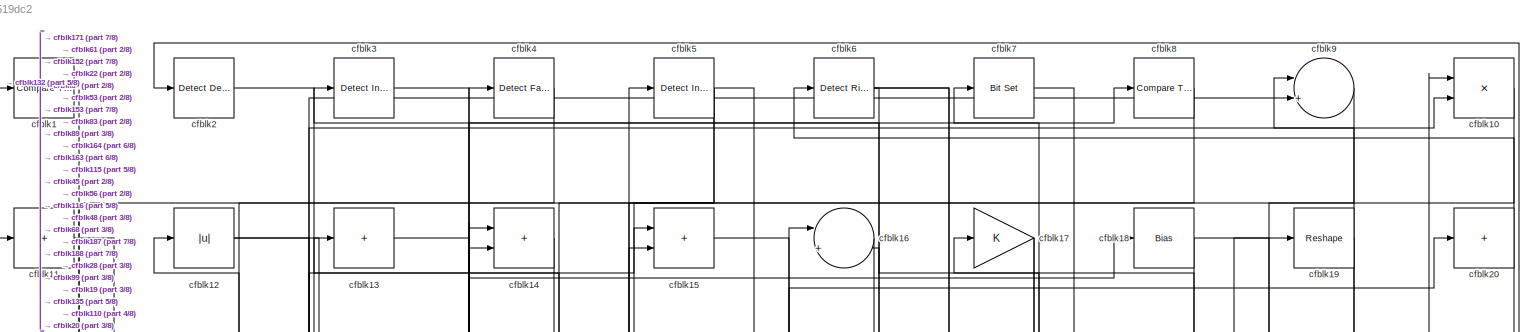
[diagram: root canvas - part 1/8, full width, top band]
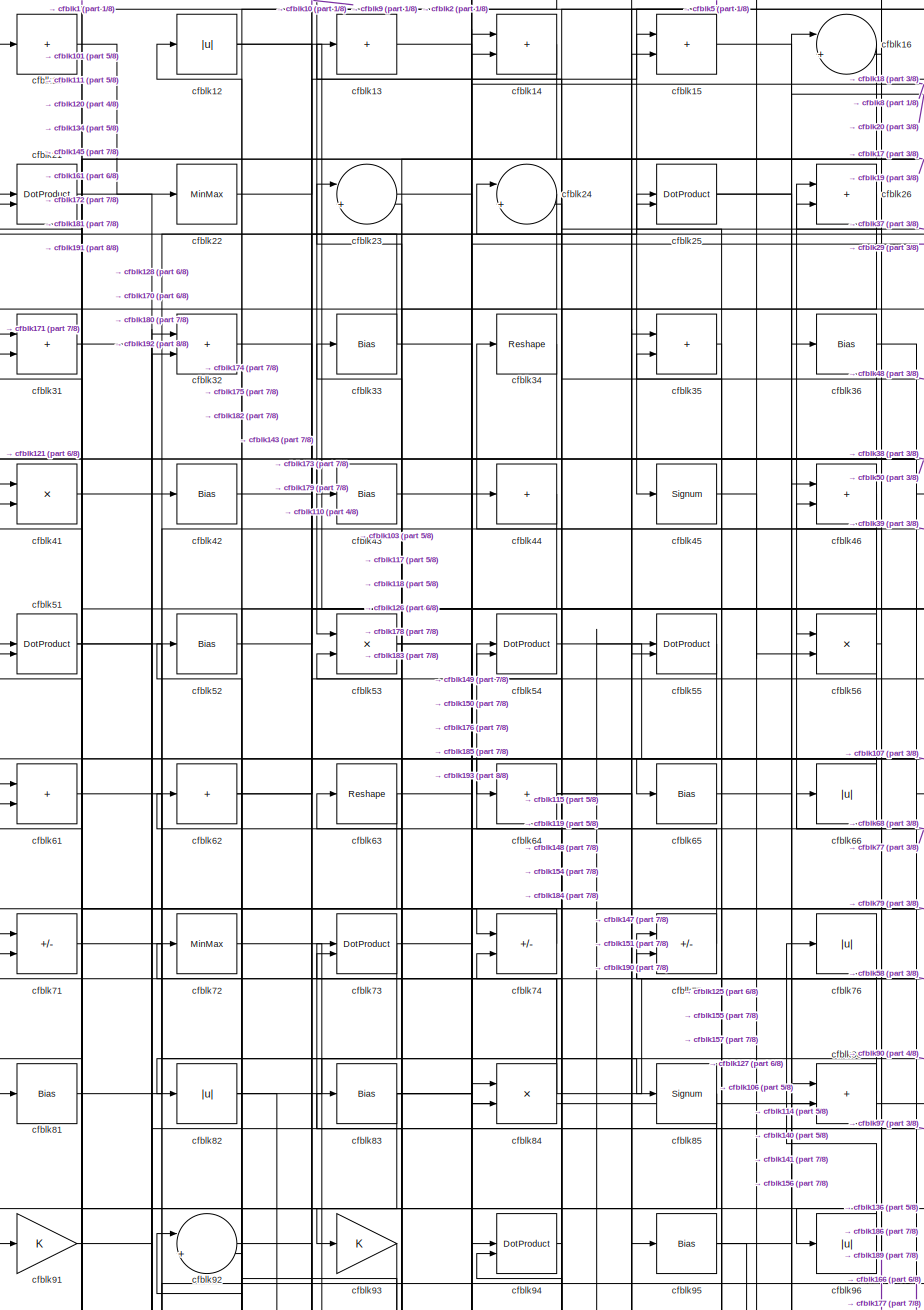
[diagram: root canvas - part 2/8, top left region]
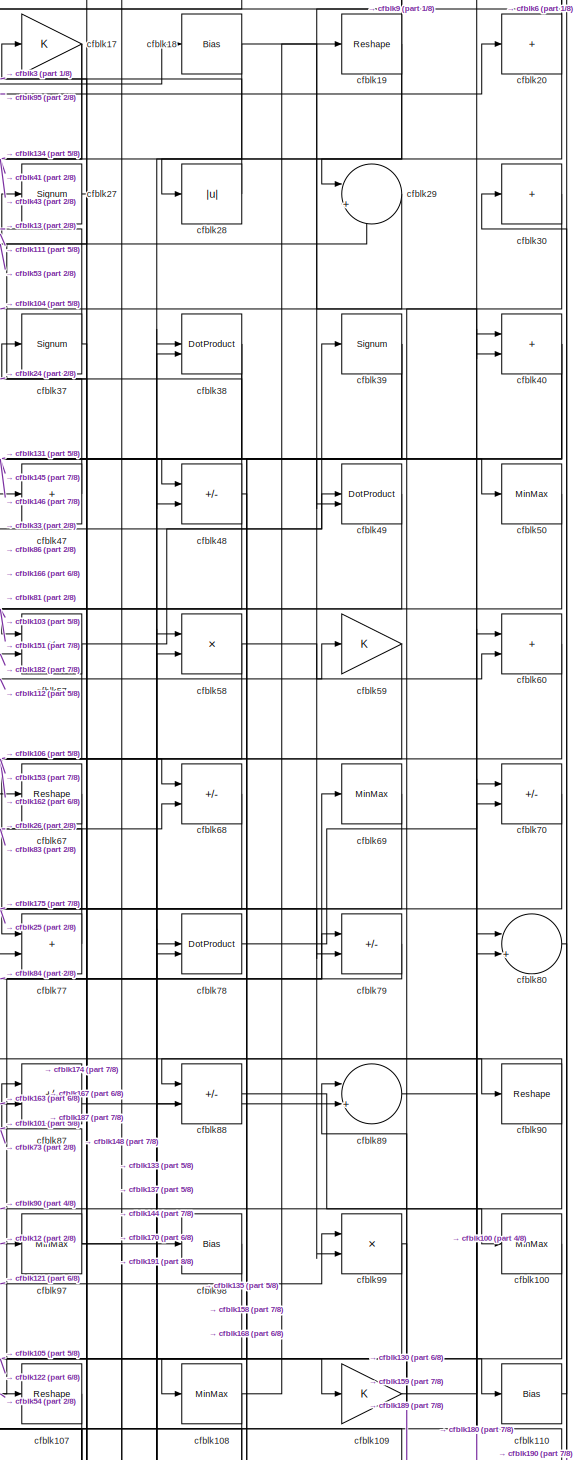
[diagram: root canvas - part 3/8, top right region]
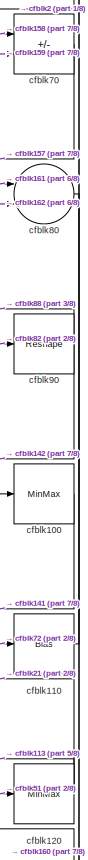
[diagram: root canvas - part 4/8, middle right region]
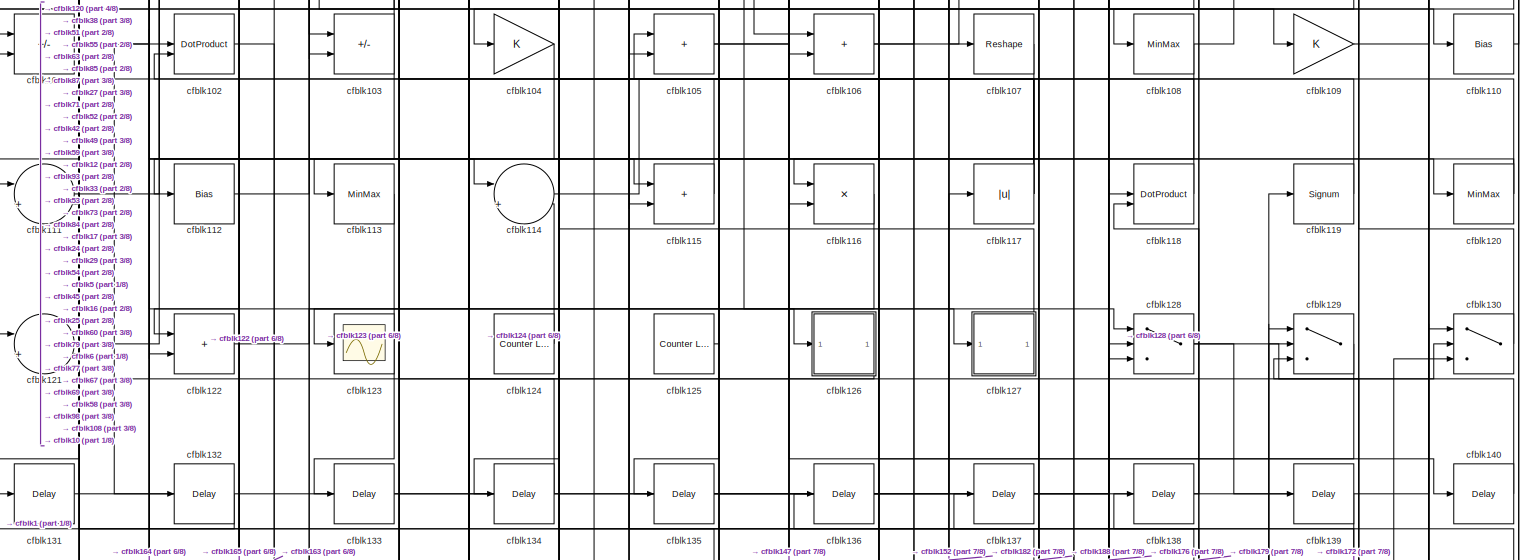
[diagram: root canvas - part 5/8, full width, middle band]
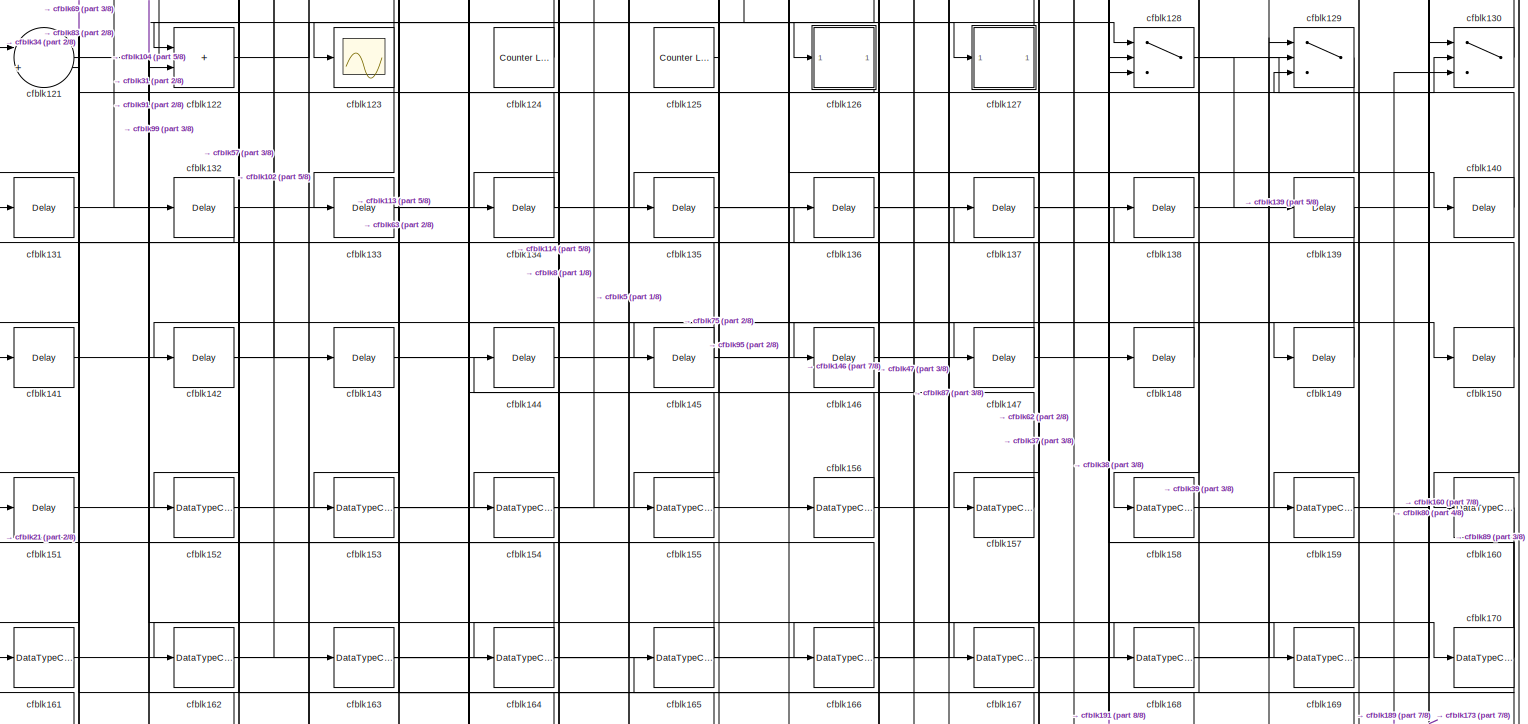
[diagram: root canvas - part 6/8, full width, bottom band]
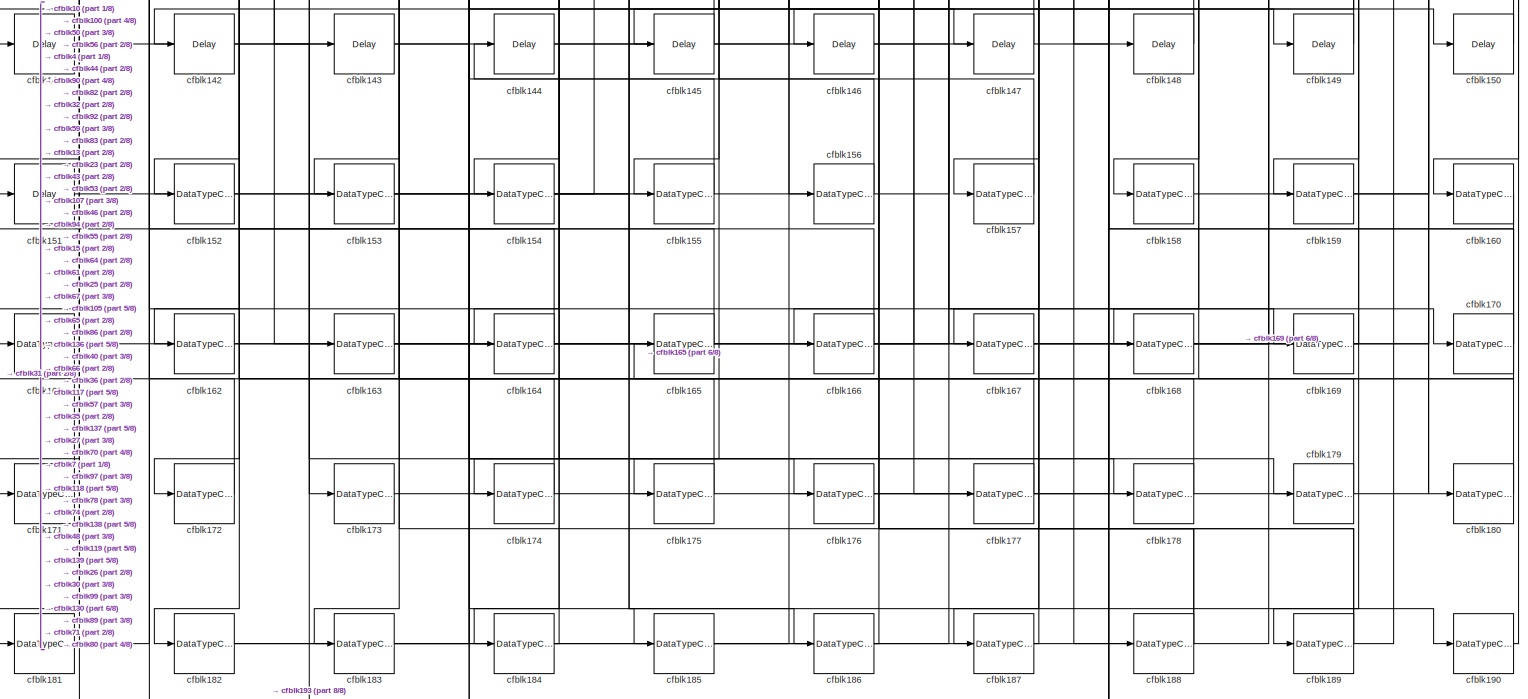
[diagram: root canvas - part 7/8, full width, bottom band]
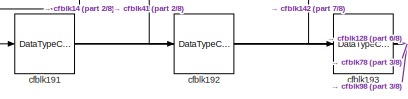
[diagram: root canvas - part 8/8, bottom left region]
MODEL slx_d0ee28519dc2
KIND model
CONFIG AbsTol = auto
CONFIG EnableMultiTasking = off
CONFIG FixedStep = auto
CONFIG MaxStep = auto
CONFIG MinStep = auto
CONFIG RelTol = 1e-3
CONFIG SampleTimeConstraint = Unconstrained
CONFIG SolverName = VariableStepAuto
CONFIG StartTime = 0.0
CONFIG StopTime = 10.0
BLOCK [Reference] cfblk1  REF=hdlsllib/Logic and Bit
Operations/Compare
To Zero
  SourceBlock = hdlsllib/Logic and Bit\nOperations/Compare\nTo Zero
  SourceType = Compare To Zero
BLOCK [Product] cfblk10
  Inputs = */
  RndMeth = Zero
  SaturateOnIntegerOverflow = on
BLOCK [MinMax] cfblk100
BLOCK [Sum] cfblk101
  IconShape = rectangular
  Inputs = +-
BLOCK [DotProduct] cfblk102
  OutDataTypeStr = Inherit: Inherit via internal rule
BLOCK [Sum] cfblk103
  IconShape = rectangular
  Inputs = +-
BLOCK [Gain] cfblk104
BLOCK [Sum] cfblk105
  IconShape = rectangular
BLOCK [Sum] cfblk106
  IconShape = rectangular
BLOCK [Reshape] cfblk107
BLOCK [MinMax] cfblk108
BLOCK [Gain] cfblk109
BLOCK [Sum] cfblk11
  IconShape = rectangular
  Inputs = +
BLOCK [Bias] cfblk110
  Bias = 0.0
  SaturateOnIntegerOverflow = off
BLOCK [Sum] cfblk111
  Inputs = |++
BLOCK [Bias] cfblk112
  Bias = 0.0
  SaturateOnIntegerOverflow = off
BLOCK [MinMax] cfblk113
BLOCK [Sum] cfblk114
  Inputs = |++
BLOCK [Sum] cfblk115
  IconShape = rectangular
BLOCK [Product] cfblk116
  Inputs = */
  RndMeth = Zero
  SaturateOnIntegerOverflow = on
BLOCK [Abs] cfblk117
  SaturateOnIntegerOverflow = off
BLOCK [DotProduct] cfblk118
  OutDataTypeStr = Inherit: Inherit via internal rule
BLOCK [Signum] cfblk119
BLOCK [Abs] cfblk12
  SaturateOnIntegerOverflow = off
BLOCK [MinMax] cfblk120
BLOCK [Sum] cfblk121
  Inputs = |++
BLOCK [Sum] cfblk122
  IconShape = rectangular
BLOCK [Scope] cfblk123
  Floating = off
  NumInputPorts = 1
  ScopeSpecificationString = Simulink.scopes.TimeScopeBlockCfg('CurrentConfiguration', extmgr.ConfigurationSet(extmgr.Configuration('Core','General UI',true),extmgr.Configuration('Core','Source UI',true),extmgr.Configuration('Sources','WiredSimulink',true,'DataLoggingVariableName','ScopeData2','DataLoggingSaveFormat','Array','DataLoggingLimitDataPoints',true,'DataLoggingDecimation','1'),extmgr.Configuration('Visuals','Time Do...<+868ch>
BLOCK [Reference] cfblk124  REF=hdlsllib/Sources/Counter
Limited
  SourceBlock = hdlsllib/Sources/Counter\nLimited
  SourceType = Counter Limited
BLOCK [Reference] cfblk125  REF=hdlsllib/Sources/Counter
Limited
  SourceBlock = hdlsllib/Sources/Counter\nLimited
  SourceType = Counter Limited
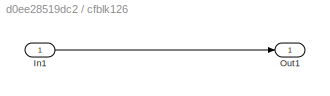
BLOCK [SubSystem] cfblk126
  LibrarySourceBlock = hdlsllib/Ports &\nSubsystems/Subsystem
BLOCK [Inport] cfblk126/In1
BLOCK [Outport] cfblk126/Out1
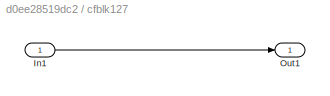
BLOCK [SubSystem] cfblk127
  LibrarySourceBlock = hdlsllib/Ports &\nSubsystems/Subsystem
BLOCK [Inport] cfblk127/In1
BLOCK [Outport] cfblk127/Out1
BLOCK [Switch] cfblk128
  InputSameDT = off
  SaturateOnIntegerOverflow = off
BLOCK [Switch] cfblk129
  InputSameDT = off
  SaturateOnIntegerOverflow = off
BLOCK [Sum] cfblk13
  IconShape = rectangular
  Inputs = +
BLOCK [Switch] cfblk130
  InputSameDT = off
  SaturateOnIntegerOverflow = off
BLOCK [Delay] cfblk131
  InputPortMap = u0
  SampleTime = 1
BLOCK [Delay] cfblk132
  InputPortMap = u0
  SampleTime = 1
BLOCK [Delay] cfblk133
  InputPortMap = u0
  SampleTime = 1
BLOCK [Delay] cfblk134
  InputPortMap = u0
  SampleTime = 1
BLOCK [Delay] cfblk135
  InputPortMap = u0
  SampleTime = 1
BLOCK [Delay] cfblk136
  InputPortMap = u0
  SampleTime = 1
BLOCK [Delay] cfblk137
  InputPortMap = u0
  SampleTime = 1
BLOCK [Delay] cfblk138
  InputPortMap = u0
  SampleTime = 1
BLOCK [Delay] cfblk139
  InputPortMap = u0
  SampleTime = 1
BLOCK [Sum] cfblk14
  IconShape = rectangular
BLOCK [Delay] cfblk140
  InputPortMap = u0
  SampleTime = 1
BLOCK [Delay] cfblk141
  InputPortMap = u0
  SampleTime = 1
BLOCK [Delay] cfblk142
  InputPortMap = u0
  SampleTime = 1
BLOCK [Delay] cfblk143
  InputPortMap = u0
  SampleTime = 1
BLOCK [Delay] cfblk144
  InputPortMap = u0
  SampleTime = 1
BLOCK [Delay] cfblk145
  InputPortMap = u0
  SampleTime = 1
BLOCK [Delay] cfblk146
  InputPortMap = u0
  SampleTime = 1
BLOCK [Delay] cfblk147
  InputPortMap = u0
  SampleTime = 1
BLOCK [Delay] cfblk148
  InputPortMap = u0
  SampleTime = 1
BLOCK [Delay] cfblk149
  InputPortMap = u0
  SampleTime = 1
BLOCK [Sum] cfblk15
  IconShape = rectangular
BLOCK [Delay] cfblk150
  InputPortMap = u0
  SampleTime = 1
BLOCK [Delay] cfblk151
  InputPortMap = u0
  SampleTime = 1
BLOCK [DataTypeConversion] cfblk152
  OutDataTypeStr = uint8
  RndMeth = Floor
  SaturateOnIntegerOverflow = off
BLOCK [DataTypeConversion] cfblk153
  OutDataTypeStr = uint8
  RndMeth = Floor
  SaturateOnIntegerOverflow = off
BLOCK [DataTypeConversion] cfblk154
  RndMeth = Floor
  SaturateOnIntegerOverflow = off
BLOCK [DataTypeConversion] cfblk155
  OutDataTypeStr = uint8
  RndMeth = Floor
  SaturateOnIntegerOverflow = off
BLOCK [DataTypeConversion] cfblk156
  OutDataTypeStr = uint8
  RndMeth = Floor
  SaturateOnIntegerOverflow = off
BLOCK [DataTypeConversion] cfblk157
  OutDataTypeStr = uint8
  RndMeth = Floor
  SaturateOnIntegerOverflow = off
BLOCK [DataTypeConversion] cfblk158
  OutDataTypeStr = uint8
  RndMeth = Floor
  SaturateOnIntegerOverflow = off
BLOCK [DataTypeConversion] cfblk159
  OutDataTypeStr = uint8
  RndMeth = Floor
  SaturateOnIntegerOverflow = off
BLOCK [Sum] cfblk16
  Inputs = |++
BLOCK [DataTypeConversion] cfblk160
  OutDataTypeStr = uint8
  RndMeth = Floor
  SaturateOnIntegerOverflow = off
BLOCK [DataTypeConversion] cfblk161
  OutDataTypeStr = uint8
  RndMeth = Floor
  SaturateOnIntegerOverflow = off
BLOCK [DataTypeConversion] cfblk162
  OutDataTypeStr = uint8
  RndMeth = Floor
  SaturateOnIntegerOverflow = off
BLOCK [DataTypeConversion] cfblk163
  RndMeth = Floor
  SaturateOnIntegerOverflow = off
BLOCK [DataTypeConversion] cfblk164
  OutDataTypeStr = uint8
  RndMeth = Floor
  SaturateOnIntegerOverflow = off
BLOCK [DataTypeConversion] cfblk165
  OutDataTypeStr = uint8
  RndMeth = Floor
  SaturateOnIntegerOverflow = off
BLOCK [DataTypeConversion] cfblk166
  RndMeth = Floor
  SaturateOnIntegerOverflow = off
BLOCK [DataTypeConversion] cfblk167
  OutDataTypeStr = uint8
  RndMeth = Floor
  SaturateOnIntegerOverflow = off
BLOCK [DataTypeConversion] cfblk168
  OutDataTypeStr = uint8
  RndMeth = Floor
  SaturateOnIntegerOverflow = off
BLOCK [DataTypeConversion] cfblk169
  OutDataTypeStr = uint8
  RndMeth = Floor
  SaturateOnIntegerOverflow = off
BLOCK [Gain] cfblk17
BLOCK [DataTypeConversion] cfblk170
  RndMeth = Floor
  SaturateOnIntegerOverflow = off
BLOCK [DataTypeConversion] cfblk171
  OutDataTypeStr = uint8
  RndMeth = Floor
  SaturateOnIntegerOverflow = off
BLOCK [DataTypeConversion] cfblk172
  OutDataTypeStr = uint8
  RndMeth = Floor
  SaturateOnIntegerOverflow = off
BLOCK [DataTypeConversion] cfblk173
  OutDataTypeStr = uint8
  RndMeth = Floor
  SaturateOnIntegerOverflow = off
BLOCK [DataTypeConversion] cfblk174
  OutDataTypeStr = uint8
  RndMeth = Floor
  SaturateOnIntegerOverflow = off
BLOCK [DataTypeConversion] cfblk175
  OutDataTypeStr = uint8
  RndMeth = Floor
  SaturateOnIntegerOverflow = off
BLOCK [DataTypeConversion] cfblk176
  OutDataTypeStr = uint8
  RndMeth = Floor
  SaturateOnIntegerOverflow = off
BLOCK [DataTypeConversion] cfblk177
  OutDataTypeStr = uint8
  RndMeth = Floor
  SaturateOnIntegerOverflow = off
BLOCK [DataTypeConversion] cfblk178
  OutDataTypeStr = uint8
  RndMeth = Floor
  SaturateOnIntegerOverflow = off
BLOCK [DataTypeConversion] cfblk179
  OutDataTypeStr = uint8
  RndMeth = Floor
  SaturateOnIntegerOverflow = off
BLOCK [Bias] cfblk18
  Bias = 0.0
  SaturateOnIntegerOverflow = off
BLOCK [DataTypeConversion] cfblk180
  OutDataTypeStr = uint8
  RndMeth = Floor
  SaturateOnIntegerOverflow = off
BLOCK [DataTypeConversion] cfblk181
  OutDataTypeStr = uint8
  RndMeth = Floor
  SaturateOnIntegerOverflow = off
BLOCK [DataTypeConversion] cfblk182
  RndMeth = Floor
  SaturateOnIntegerOverflow = off
BLOCK [DataTypeConversion] cfblk183
  OutDataTypeStr = uint8
  RndMeth = Floor
  SaturateOnIntegerOverflow = off
BLOCK [DataTypeConversion] cfblk184
  OutDataTypeStr = uint8
  RndMeth = Floor
  SaturateOnIntegerOverflow = off
BLOCK [DataTypeConversion] cfblk185
  OutDataTypeStr = uint8
  RndMeth = Floor
  SaturateOnIntegerOverflow = off
BLOCK [DataTypeConversion] cfblk186
  OutDataTypeStr = uint8
  RndMeth = Floor
  SaturateOnIntegerOverflow = off
BLOCK [DataTypeConversion] cfblk187
  OutDataTypeStr = boolean
  RndMeth = Floor
  SaturateOnIntegerOverflow = off
BLOCK [DataTypeConversion] cfblk188
  RndMeth = Floor
  SaturateOnIntegerOverflow = off
BLOCK [DataTypeConversion] cfblk189
  RndMeth = Floor
  SaturateOnIntegerOverflow = off
BLOCK [Reshape] cfblk19
BLOCK [DataTypeConversion] cfblk190
  OutDataTypeStr = uint8
  RndMeth = Floor
  SaturateOnIntegerOverflow = off
BLOCK [DataTypeConversion] cfblk191
  RndMeth = Floor
  SaturateOnIntegerOverflow = off
BLOCK [DataTypeConversion] cfblk192
  OutDataTypeStr = uint8
  RndMeth = Floor
  SaturateOnIntegerOverflow = off
BLOCK [DataTypeConversion] cfblk193
  OutDataTypeStr = uint8
  RndMeth = Floor
  SaturateOnIntegerOverflow = off
BLOCK [Reference] cfblk2  REF=simulink/Logic and Bit
Operations/Detect
Decrease
  LibrarySourceBlock = hdlsllib/Logic and Bit\nOperations/Detect\nDecrease
  SourceBlock = simulink/Logic and Bit\nOperations/Detect\nDecrease
  SourceType = Detect Decrease
BLOCK [Sum] cfblk20
  IconShape = rectangular
  Inputs = +
BLOCK [DotProduct] cfblk21
  OutDataTypeStr = Inherit: Inherit via internal rule
BLOCK [MinMax] cfblk22
BLOCK [Sum] cfblk23
  Inputs = |++
BLOCK [Sum] cfblk24
  Inputs = |++
BLOCK [DotProduct] cfblk25
  OutDataTypeStr = Inherit: Inherit via internal rule
BLOCK [Sum] cfblk26
  IconShape = rectangular
BLOCK [Signum] cfblk27
BLOCK [Abs] cfblk28
  SaturateOnIntegerOverflow = off
BLOCK [Sum] cfblk29
  Inputs = |++
BLOCK [Reference] cfblk3  REF=simulink/Logic and Bit
Operations/Detect
Increase
  LibrarySourceBlock = hdlsllib/Logic and Bit\nOperations/Detect\nIncrease
  SourceBlock = simulink/Logic and Bit\nOperations/Detect\nIncrease
  SourceType = Detect Increase
BLOCK [Sum] cfblk30
  IconShape = rectangular
  Inputs = +
BLOCK [Sum] cfblk31
  IconShape = rectangular
BLOCK [Sum] cfblk32
  IconShape = rectangular
BLOCK [Bias] cfblk33
  Bias = 0.0
  SaturateOnIntegerOverflow = off
BLOCK [Reshape] cfblk34
BLOCK [Sum] cfblk35
  IconShape = rectangular
BLOCK [Bias] cfblk36
  Bias = 0.0
  SaturateOnIntegerOverflow = off
BLOCK [Signum] cfblk37
BLOCK [DotProduct] cfblk38
  OutDataTypeStr = Inherit: Inherit via internal rule
BLOCK [Signum] cfblk39
BLOCK [Reference] cfblk4  REF=hdlsllib/Logic and Bit
Operations/Detect Fall
Negative
  SourceBlock = hdlsllib/Logic and Bit\nOperations/Detect Fall\nNegative
  SourceType = Detect Fall Negative
BLOCK [Sum] cfblk40
  IconShape = rectangular
BLOCK [Product] cfblk41
  Inputs = */
  RndMeth = Zero
  SaturateOnIntegerOverflow = on
BLOCK [Bias] cfblk42
  Bias = 0.0
  SaturateOnIntegerOverflow = off
BLOCK [Bias] cfblk43
  Bias = 0.0
  SaturateOnIntegerOverflow = off
BLOCK [Sum] cfblk44
  IconShape = rectangular
  Inputs = +
BLOCK [Signum] cfblk45
BLOCK [Sum] cfblk46
  IconShape = rectangular
BLOCK [Sum] cfblk47
  IconShape = rectangular
  Inputs = +
BLOCK [Sum] cfblk48
  IconShape = rectangular
  Inputs = +-
BLOCK [DotProduct] cfblk49
  OutDataTypeStr = Inherit: Inherit via internal rule
BLOCK [Reference] cfblk5  REF=simulink/Logic and Bit
Operations/Detect
Increase
  LibrarySourceBlock = hdlsllib/Logic and Bit\nOperations/Detect\nIncrease
  SourceBlock = simulink/Logic and Bit\nOperations/Detect\nIncrease
  SourceType = Detect Increase
BLOCK [MinMax] cfblk50
BLOCK [DotProduct] cfblk51
  OutDataTypeStr = Inherit: Inherit via internal rule
BLOCK [Bias] cfblk52
  Bias = 0.0
  SaturateOnIntegerOverflow = off
BLOCK [Product] cfblk53
  Inputs = */
  RndMeth = Zero
  SaturateOnIntegerOverflow = on
BLOCK [DotProduct] cfblk54
  OutDataTypeStr = Inherit: Inherit via internal rule
BLOCK [DotProduct] cfblk55
  OutDataTypeStr = Inherit: Inherit via internal rule
BLOCK [Product] cfblk56
  Inputs = */
  RndMeth = Zero
  SaturateOnIntegerOverflow = on
BLOCK [Product] cfblk57
  Inputs = */
  RndMeth = Zero
  SaturateOnIntegerOverflow = on
BLOCK [Product] cfblk58
  Inputs = */
  RndMeth = Zero
  SaturateOnIntegerOverflow = on
BLOCK [Gain] cfblk59
BLOCK [Reference] cfblk6  REF=hdlsllib/Logic and Bit
Operations/Detect Rise
Positive
  SourceBlock = hdlsllib/Logic and Bit\nOperations/Detect Rise\nPositive
  SourceType = Detect Rise Positive
BLOCK [Sum] cfblk60
  IconShape = rectangular
BLOCK [Sum] cfblk61
  IconShape = rectangular
BLOCK [Sum] cfblk62
  IconShape = rectangular
  Inputs = +
BLOCK [Reshape] cfblk63
BLOCK [Sum] cfblk64
  IconShape = rectangular
  Inputs = +
BLOCK [Bias] cfblk65
  Bias = 0.0
  SaturateOnIntegerOverflow = off
BLOCK [Abs] cfblk66
  SaturateOnIntegerOverflow = off
BLOCK [Reshape] cfblk67
BLOCK [Sum] cfblk68
  IconShape = rectangular
  Inputs = +-
BLOCK [MinMax] cfblk69
BLOCK [Reference] cfblk7  REF=simulink/Logic and Bit
Operations/Bit Set
  LibrarySourceBlock = hdlsllib/Logic and Bit\nOperations/Bit Set
  SourceBlock = simulink/Logic and Bit\nOperations/Bit Set
  SourceType = Bit Set
BLOCK [Sum] cfblk70
  IconShape = rectangular
  Inputs = +-
BLOCK [Sum] cfblk71
  IconShape = rectangular
  Inputs = +-
BLOCK [MinMax] cfblk72
BLOCK [DotProduct] cfblk73
  OutDataTypeStr = Inherit: Inherit via internal rule
BLOCK [Sum] cfblk74
  IconShape = rectangular
  Inputs = +-
BLOCK [Sum] cfblk75
  IconShape = rectangular
  Inputs = +-
BLOCK [Abs] cfblk76
  SaturateOnIntegerOverflow = off
BLOCK [Sum] cfblk77
  IconShape = rectangular
BLOCK [DotProduct] cfblk78
  OutDataTypeStr = Inherit: Inherit via internal rule
BLOCK [Sum] cfblk79
  IconShape = rectangular
  Inputs = +-
BLOCK [Reference] cfblk8  REF=hdlsllib/Logic and Bit
Operations/Compare
To Zero
  SourceBlock = hdlsllib/Logic and Bit\nOperations/Compare\nTo Zero
  SourceType = Compare To Zero
BLOCK [Sum] cfblk80
  Inputs = |++
BLOCK [Bias] cfblk81
  Bias = 0.0
  SaturateOnIntegerOverflow = off
BLOCK [Abs] cfblk82
  SaturateOnIntegerOverflow = off
BLOCK [Bias] cfblk83
  Bias = 0.0
  SaturateOnIntegerOverflow = off
BLOCK [Product] cfblk84
  Inputs = */
  RndMeth = Zero
  SaturateOnIntegerOverflow = on
BLOCK [Signum] cfblk85
BLOCK [Sum] cfblk86
  IconShape = rectangular
BLOCK [Sum] cfblk87
  IconShape = rectangular
  Inputs = +-
BLOCK [Sum] cfblk88
  IconShape = rectangular
  Inputs = +-
BLOCK [Sum] cfblk89
  Inputs = |++
BLOCK [Sum] cfblk9
  Inputs = |++
BLOCK [Reshape] cfblk90
BLOCK [Gain] cfblk91
BLOCK [Sum] cfblk92
  Inputs = |++
BLOCK [Gain] cfblk93
BLOCK [DotProduct] cfblk94
  OutDataTypeStr = Inherit: Inherit via internal rule
BLOCK [Bias] cfblk95
  Bias = 0.0
  SaturateOnIntegerOverflow = off
BLOCK [Abs] cfblk96
  SaturateOnIntegerOverflow = off
BLOCK [MinMax] cfblk97
BLOCK [Bias] cfblk98
  Bias = 0.0
  SaturateOnIntegerOverflow = off
BLOCK [Product] cfblk99
  Inputs = */
  RndMeth = Zero
  SaturateOnIntegerOverflow = on
LINE cfblk100:1 -> cfblk141:1
NET cfblk101:1 -> cfblk116:2, cfblk132:1, cfblk87:1
LINE cfblk102:1 -> cfblk163:1
NET cfblk103:1 -> cfblk112:1, cfblk12:1
LINE cfblk104:1 -> cfblk122:2
NET cfblk105:1 -> cfblk147:1, cfblk79:1
NET cfblk106:1 -> cfblk67:1, cfblk69:1
LINE cfblk107:1 -> cfblk174:1
NET cfblk108:1 -> cfblk135:1, cfblk19:1
LINE cfblk109:1 -> cfblk60:1
LINE cfblk10:1 -> cfblk171:1
LINE cfblk110:1 -> cfblk2:1
LINE cfblk111:1 -> cfblk27:1
LINE cfblk112:1 -> cfblk59:1
LINE cfblk113:1 -> cfblk123:1
LINE cfblk114:1 -> cfblk16:1
LINE cfblk115:1 -> cfblk54:1
LINE cfblk116:1 -> cfblk133:1
NET cfblk117:1 -> cfblk105:1, cfblk52:1, cfblk53:2
LINE cfblk118:1 -> cfblk33:1
LINE cfblk119:1 -> cfblk24:1
LINE cfblk11:1 -> cfblk22:1
NET cfblk120:1 -> cfblk113:1, cfblk21:2
LINE cfblk121:1 -> cfblk99:1
LINE cfblk122:1 -> cfblk126:1
LINE cfblk124:1 -> cfblk114:2
LINE cfblk125:1 -> cfblk75:1
LINE cfblk126/In1:1 -> cfblk126/Out1:1
LINE cfblk126:1 -> cfblk63:1
LINE cfblk127/In1:1 -> cfblk127/Out1:1
LINE cfblk127:1 -> cfblk62:1
NET cfblk128:1 -> cfblk130:2, cfblk139:1
LINE cfblk129:1 -> cfblk166:1
NET cfblk12:1 -> cfblk56:1, cfblk97:1
LINE cfblk130:1 -> cfblk89:1
LINE cfblk131:1 -> cfblk77:2
LINE cfblk132:1 -> cfblk1:1
LINE cfblk133:1 -> cfblk58:1
LINE cfblk134:1 -> cfblk51:2
LINE cfblk135:1 -> cfblk10:1
LINE cfblk136:1 -> cfblk16:2
LINE cfblk137:1 -> cfblk38:2
LINE cfblk138:1 -> cfblk118:2
LINE cfblk139:1 -> cfblk172:1
LINE cfblk13:1 -> cfblk150:1
LINE cfblk140:1 -> cfblk84:1
LINE cfblk141:1 -> cfblk86:1
LINE cfblk142:1 -> cfblk193:1
LINE cfblk143:1 -> cfblk178:1
LINE cfblk144:1 -> cfblk78:1
LINE cfblk145:1 -> cfblk61:2
LINE cfblk146:1 -> cfblk169:1
LINE cfblk147:1 -> cfblk35:1
LINE cfblk148:1 -> cfblk74:2
LINE cfblk149:1 -> cfblk26:2
LINE cfblk14:1 -> cfblk191:1
LINE cfblk150:1 -> cfblk71:2
LINE cfblk151:1 -> cfblk15:2
LINE cfblk152:1 -> cfblk117:1
LINE cfblk153:1 -> cfblk4:1
NET cfblk154:1 -> cfblk186:1, cfblk55:1
LINE cfblk155:1 -> cfblk94:1
LINE cfblk156:1 -> cfblk94:2
LINE cfblk157:1 -> cfblk25:2
LINE cfblk158:1 -> cfblk70:1
LINE cfblk159:1 -> cfblk70:2
LINE cfblk15:1 -> cfblk36:1
LINE cfblk160:1 -> cfblk165:1
LINE cfblk161:1 -> cfblk80:1
LINE cfblk162:1 -> cfblk80:2
NET cfblk163:1 -> cfblk5:1, cfblk87:2
LINE cfblk164:1 -> cfblk102:1
LINE cfblk165:1 -> cfblk102:2
NET cfblk166:1 -> cfblk21:1, cfblk47:1
LINE cfblk167:1 -> cfblk129:1
LINE cfblk168:1 -> cfblk129:2
LINE cfblk169:1 -> cfblk129:3
LINE cfblk16:1 -> cfblk64:1
NET cfblk170:1 -> cfblk128:2, cfblk38:1
LINE cfblk171:1 -> cfblk31:1
LINE cfblk172:1 -> cfblk31:2
LINE cfblk173:1 -> cfblk130:1
LINE cfblk174:1 -> cfblk92:1
LINE cfblk175:1 -> cfblk92:2
LINE cfblk176:1 -> cfblk118:1
LINE cfblk177:1 -> cfblk23:1
LINE cfblk178:1 -> cfblk23:2
LINE cfblk179:1 -> cfblk138:1
NET cfblk17:1 -> cfblk134:1, cfblk41:1
LINE cfblk180:1 -> cfblk32:1
LINE cfblk181:1 -> cfblk32:2
NET cfblk182:1 -> cfblk119:1, cfblk57:2
LINE cfblk183:1 -> cfblk44:1
LINE cfblk184:1 -> cfblk144:1
LINE cfblk185:1 -> cfblk46:1
LINE cfblk186:1 -> cfblk46:2
LINE cfblk187:1 -> cfblk7:1
NET cfblk188:1 -> cfblk136:1, cfblk137:1
NET cfblk189:1 -> cfblk130:3, cfblk66:1, cfblk83:1
NET cfblk18:1 -> cfblk40:2, cfblk88:2
LINE cfblk190:1 -> cfblk30:1
NET cfblk191:1 -> cfblk128:3, cfblk78:2, cfblk98:1
LINE cfblk192:1 -> cfblk14:1
LINE cfblk193:1 -> cfblk14:2
NET cfblk19:1 -> cfblk28:1, cfblk43:1, cfblk9:1
LINE cfblk1:1 -> cfblk61:1
NET cfblk20:1 -> cfblk29:1, cfblk6:1
LINE cfblk21:1 -> cfblk42:1
LINE cfblk22:1 -> cfblk10:2
LINE cfblk23:1 -> cfblk176:1
LINE cfblk24:1 -> cfblk93:1
NET cfblk25:1 -> cfblk140:1, cfblk79:2
LINE cfblk26:1 -> cfblk51:1
LINE cfblk27:1 -> cfblk187:1
LINE cfblk28:1 -> cfblk3:1
LINE cfblk29:1 -> cfblk104:1
LINE cfblk2:1 -> cfblk53:1
LINE cfblk30:1 -> cfblk189:1
LINE cfblk31:1 -> cfblk170:1
LINE cfblk32:1 -> cfblk179:1
NET cfblk33:1 -> cfblk11:1, cfblk50:1
LINE cfblk34:1 -> cfblk121:1
LINE cfblk35:1 -> cfblk155:1
NET cfblk36:1 -> cfblk177:1, cfblk183:1, cfblk55:2
NET cfblk37:1 -> cfblk13:1, cfblk167:1
NET cfblk38:1 -> cfblk131:1, cfblk86:2
NET cfblk39:1 -> cfblk168:1, cfblk48:1, cfblk49:2
LINE cfblk3:1 -> cfblk89:2
NET cfblk40:1 -> cfblk108:1, cfblk145:1, cfblk146:1
LINE cfblk41:1 -> cfblk192:1
LINE cfblk42:1 -> cfblk103:1
LINE cfblk43:1 -> cfblk185:1
LINE cfblk44:1 -> cfblk182:1
LINE cfblk45:1 -> cfblk106:1
LINE cfblk46:1 -> cfblk184:1
LINE cfblk47:1 -> cfblk17:1
NET cfblk48:1 -> cfblk158:1, cfblk24:2, cfblk57:1
LINE cfblk49:1 -> cfblk103:2
LINE cfblk4:1 -> cfblk152:1
LINE cfblk50:1 -> cfblk151:1
NET cfblk51:1 -> cfblk120:1, cfblk74:1
LINE cfblk52:1 -> cfblk25:1
NET cfblk53:1 -> cfblk149:1, cfblk29:2
LINE cfblk54:1 -> cfblk107:1
LINE cfblk55:1 -> cfblk101:1
NET cfblk56:1 -> cfblk181:1, cfblk34:1, cfblk96:1
NET cfblk57:1 -> cfblk162:1, cfblk49:1
NET cfblk58:1 -> cfblk60:2, cfblk77:1
LINE cfblk59:1 -> cfblk153:1
NET cfblk5:1 -> cfblk115:2, cfblk45:1, cfblk56:2
LINE cfblk60:1 -> cfblk106:2
LINE cfblk61:1 -> cfblk84:2
NET cfblk62:1 -> cfblk15:1, cfblk9:2
NET cfblk63:1 -> cfblk111:1, cfblk85:1
NET cfblk64:1 -> cfblk190:1, cfblk95:1
LINE cfblk65:1 -> cfblk156:1
LINE cfblk66:1 -> cfblk65:1
LINE cfblk67:1 -> cfblk175:1
LINE cfblk68:1 -> cfblk81:1
LINE cfblk69:1 -> cfblk121:2
NET cfblk6:1 -> cfblk116:1, cfblk48:2, cfblk68:1
LINE cfblk70:1 -> cfblk157:1
LINE cfblk71:1 -> cfblk114:1
LINE cfblk72:1 -> cfblk110:1
NET cfblk73:1 -> cfblk115:1, cfblk82:1
LINE cfblk74:1 -> cfblk71:1
LINE cfblk75:1 -> cfblk54:2
LINE cfblk76:1 -> cfblk75:2
LINE cfblk77:1 -> cfblk26:1
LINE cfblk78:1 -> cfblk40:1
LINE cfblk79:1 -> cfblk73:2
LINE cfblk7:1 -> cfblk188:1
LINE cfblk80:1 -> cfblk160:1
LINE cfblk81:1 -> cfblk39:1
NET cfblk82:1 -> cfblk143:1, cfblk90:1
NET cfblk83:1 -> cfblk161:1, cfblk18:1, cfblk68:2, cfblk8:1
NET cfblk84:1 -> cfblk41:2, cfblk58:2, cfblk72:1
NET cfblk85:1 -> cfblk111:2, cfblk91:1
LINE cfblk86:1 -> cfblk35:2
LINE cfblk87:1 -> cfblk37:1
LINE cfblk88:1 -> cfblk100:1
LINE cfblk89:1 -> cfblk180:1
LINE cfblk8:1 -> cfblk164:1
NET cfblk90:1 -> cfblk142:1, cfblk88:1
LINE cfblk91:1 -> cfblk128:1
LINE cfblk92:1 -> cfblk173:1
LINE cfblk93:1 -> cfblk101:2
LINE cfblk94:1 -> cfblk154:1
NET cfblk95:1 -> cfblk127:1, cfblk20:1
LINE cfblk96:1 -> cfblk76:1
NET cfblk97:1 -> cfblk109:1, cfblk148:1, cfblk73:1
LINE cfblk98:1 -> cfblk105:2
NET cfblk99:1 -> cfblk122:1, cfblk159:1
LINE cfblk9:1 -> cfblk99:2
note: NET lines group one-source signal fan-out (src -> all destinations, sorted); 1:1 wires keep LINE
